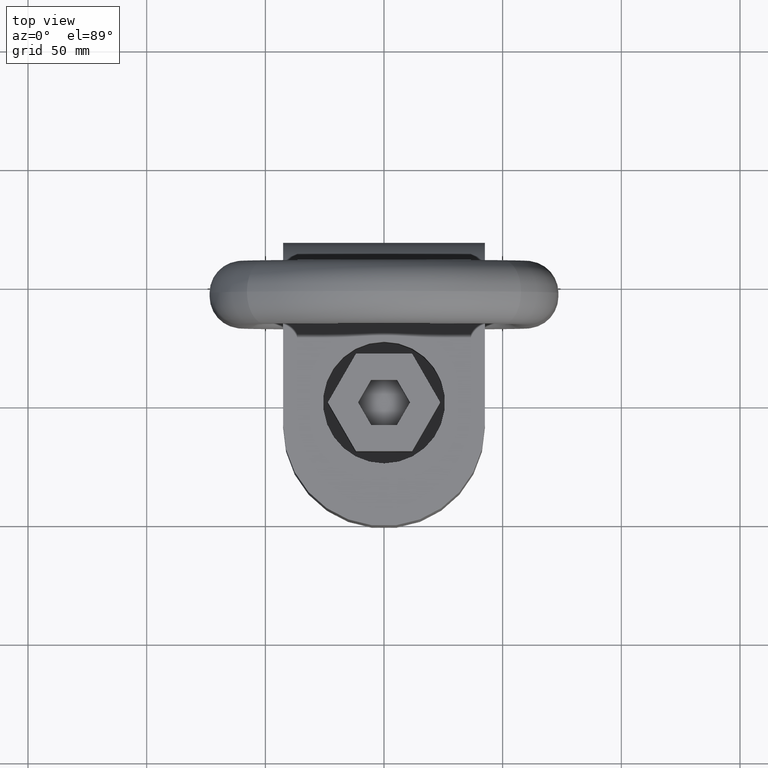
[diagram: clean part render]
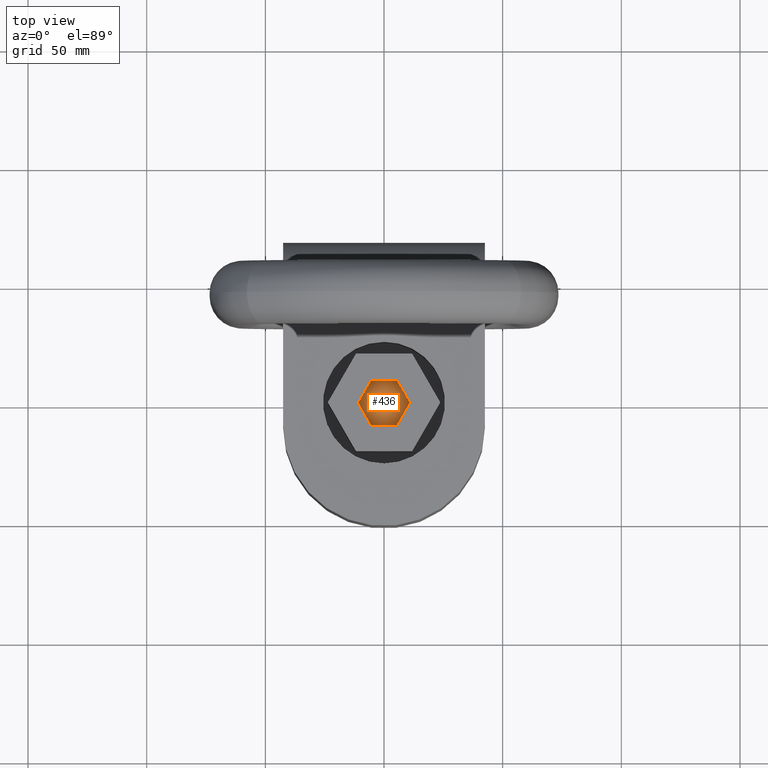
[diagram: same view with one face highlighted and labeled with its STEP entity id]
A machine part, top view. The second image highlights one B-rep face of the part: STEP entity #436.
In plain terms, the highlighted planar face has unit normal (0, 0, 1).
Its self-contained STEP definition (entity closure, byte-faithful):
#264=PLANE('',#2522);
#324=FACE_OUTER_BOUND('',#668,.T.);
#436=ADVANCED_FACE('',(#324),#264,.T.);
#668=EDGE_LOOP('',(#1314,#1315,#1316,#1317,#1318,#1319));
#838=LINE('',#3847,#968);
#841=LINE('',#3853,#971);
#843=LINE('',#3857,#973);
#845=LINE('',#3861,#975);
#847=LINE('',#3865,#977);
#848=LINE('',#3867,#978);
#968=VECTOR('',#2752,1.);
#971=VECTOR('',#2757,1.);
#973=VECTOR('',#2761,1.);
#975=VECTOR('',#2765,1.);
#977=VECTOR('',#2769,1.);
#978=VECTOR('',#2772,1.);
#1314=ORIENTED_EDGE('',*,*,#2091,.F.);
#1315=ORIENTED_EDGE('',*,*,#2094,.F.);
#1316=ORIENTED_EDGE('',*,*,#2096,.F.);
#1317=ORIENTED_EDGE('',*,*,#2098,.F.);
#1318=ORIENTED_EDGE('',*,*,#2100,.F.);
#1319=ORIENTED_EDGE('',*,*,#2101,.F.);
#1864=VERTEX_POINT('',#3846);
#1865=VERTEX_POINT('',#3848);
#1866=VERTEX_POINT('',#3852);
#1867=VERTEX_POINT('',#3856);
#1868=VERTEX_POINT('',#3860);
#1869=VERTEX_POINT('',#3864);
#2091=EDGE_CURVE('',#1864,#1865,#838,.T.);
#2094=EDGE_CURVE('',#1866,#1864,#841,.T.);
#2096=EDGE_CURVE('',#1867,#1866,#843,.T.);
#2098=EDGE_CURVE('',#1868,#1867,#845,.T.);
#2100=EDGE_CURVE('',#1869,#1868,#847,.T.);
#2101=EDGE_CURVE('',#1865,#1869,#848,.T.);
#2522=AXIS2_PLACEMENT_3D('',#3869,#2775,#2776);
#2752=DIRECTION('',(-0.5,0.866025403784438,0.));
#2757=DIRECTION('',(-1.,0.,0.));
#2761=DIRECTION('',(-0.5,-0.866025403784438,0.));
#2765=DIRECTION('',(0.5,-0.866025403784438,0.));
#2769=DIRECTION('',(1.,0.,0.));
#2772=DIRECTION('',(0.5,0.866025403784438,0.));
#2775=DIRECTION('',(0.,0.,1.));
#2776=DIRECTION('',(1.,0.,0.));
#3846=CARTESIAN_POINT('',(-5.48482755730144,-9.5,47.));
#3847=CARTESIAN_POINT('',(-10.9696551146029,0.,47.));
#3848=CARTESIAN_POINT('',(-10.9696551146029,0.,47.));
#3852=CARTESIAN_POINT('',(5.48482755730145,-9.5,47.));
#3853=CARTESIAN_POINT('',(-5.48482755730145,-9.5,47.));
#3856=CARTESIAN_POINT('',(10.9696551146029,0.,47.));
#3857=CARTESIAN_POINT('',(5.48482755730145,-9.5,47.));
#3860=CARTESIAN_POINT('',(5.48482755730144,9.5,47.));
#3861=CARTESIAN_POINT('',(10.9696551146029,0.,47.));
#3864=CARTESIAN_POINT('',(-5.48482755730145,9.5,47.));
#3865=CARTESIAN_POINT('',(5.48482755730145,9.5,47.));
#3867=CARTESIAN_POINT('',(-5.48482755730145,9.5,47.));
#3869=CARTESIAN_POINT('',(0.,0.,47.));